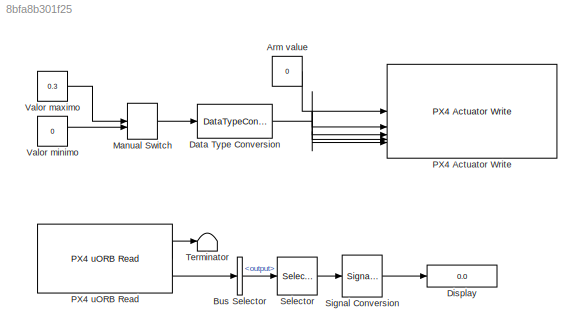
MODEL slx_8bfa8b301f25
KIND model
CONFIG AbsTol = auto
CONFIG EnableMultiTasking = on
CONFIG FixedStep = 0.001
CONFIG MaxStep = auto
CONFIG MinStep = auto
CONFIG RelTol = 1e-3
CONFIG SampleTimeConstraint = Unconstrained
CONFIG SolverName = FixedStepAuto
CONFIG StartTime = 0.0
CONFIG StopTime = inf
BLOCK [Constant] Arm value
  OutDataTypeStr = boolean
  Value = 0
BLOCK [BusSelector] Bus Selector
  OutputSignals = output
BLOCK [DataTypeConversion] Data Type Conversion
  OutDataTypeStr = single
  RndMeth = Floor
  SaturateOnIntegerOverflow = off
BLOCK [Display] Display
  Decimation = 1
BLOCK [ManualSwitch] Manual Switch
  CurrentSetting = 0
BLOCK [Reference] PX4 Actuator Write  REF=px4Peripheralslib/PX4 Actuator Write
  SourceBlock = px4Peripheralslib/PX4 Actuator Write
  SourceType = px4.internal.block.PX4Actuators
BLOCK [Reference] PX4 uORB Read  REF=px4uORBlib/PX4 uORB Read
  SourceBlock = px4uORBlib/PX4 uORB Read
  SourceType = PX4 uORB Read
BLOCK [Selector] Selector
  IndexOptions = Index vector (dialog)
  Indices = [1 2 3 4]
  InputPortWidth = 16
  OutputSizes = 1
BLOCK [SignalConversion] Signal Conversion
  OverrideOpt = off
BLOCK [Terminator] Terminator
BLOCK [Constant] Valor maximo
  Value = 0.3
BLOCK [Constant] Valor minimo
  Value = 0
LINE Arm value:1 -> PX4 Actuator Write:1
LINE Bus Selector:1 -> Selector:1
NET Data Type Conversion:1 -> PX4 Actuator Write:2, PX4 Actuator Write:3, PX4 Actuator Write:4, PX4 Actuator Write:5
LINE Manual Switch:1 -> Data Type Conversion:1
LINE PX4 uORB Read:1 -> Terminator:1
LINE PX4 uORB Read:2 -> Bus Selector:1
LINE Selector:1 -> Signal Conversion:1
LINE Signal Conversion:1 -> Display:1
LINE Valor maximo:1 -> Manual Switch:1
LINE Valor minimo:1 -> Manual Switch:2
note: NET lines group one-source signal fan-out (src -> all destinations, sorted); 1:1 wires keep LINE
